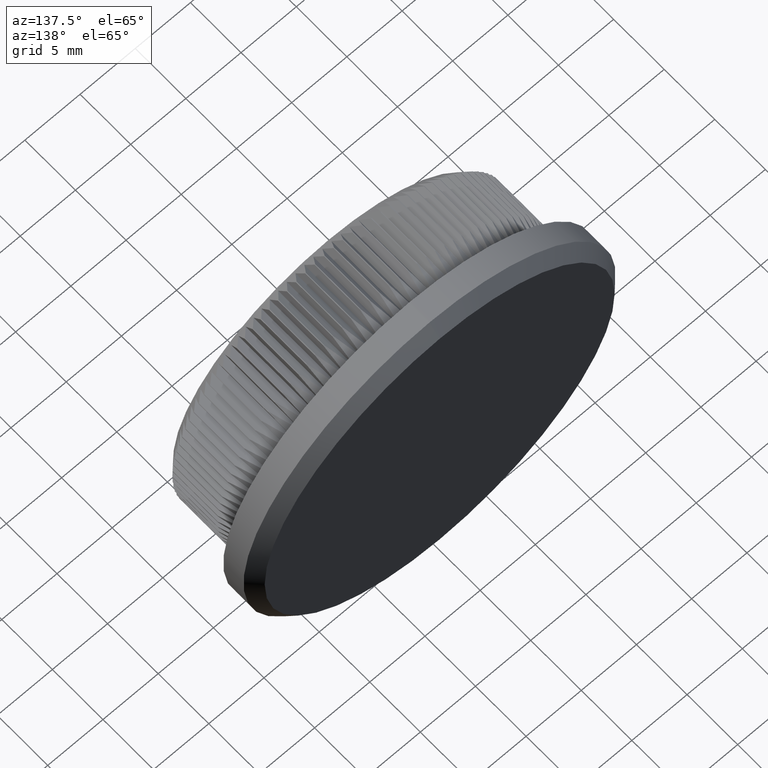
[diagram: clean part render]
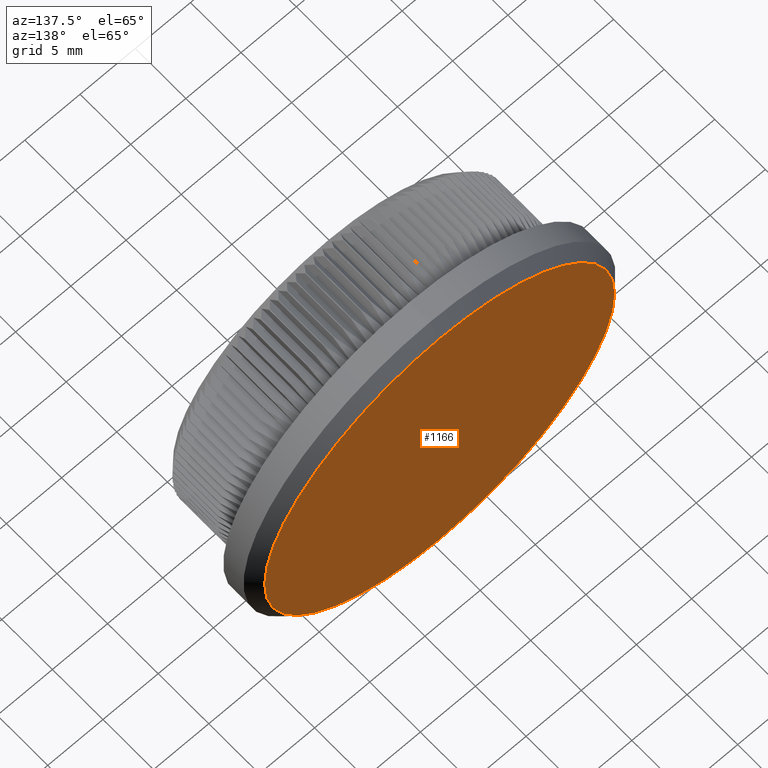
[diagram: same view with one face highlighted and labeled with its STEP entity id]
A machine part, auxiliary view. The second image highlights one B-rep face of the part: STEP entity #1166.
In plain terms, the highlighted planar face has unit normal (0, 1, 0).
Its self-contained STEP definition (entity closure, byte-faithful):
#116 = CIRCLE ( 'NONE', #6219, 15.84999999999998500 ) ;
#1096 = EDGE_CURVE ( 'NONE', #13760, #6550, #116, .T. ) ;
#1166 = ADVANCED_FACE ( 'NONE', ( #4456 ), #4999, .T. ) ;
#2573 = DIRECTION ( 'NONE',  ( 0.0000000000000000000, 1.000000000000000000, 0.0000000000000000000 ) ) ;
#4456 = FACE_OUTER_BOUND ( 'NONE', #11280, .T. ) ;
#4999 = PLANE ( 'NONE',  #13271 ) ;
#6219 = AXIS2_PLACEMENT_3D ( 'NONE', #21355, #22182, #20037 ) ;
#6550 = VERTEX_POINT ( 'NONE', #20574 ) ;
#11280 = EDGE_LOOP ( 'NONE', ( #21702, #15725 ) ) ;
#11325 = DIRECTION ( 'NONE',  ( 0.0000000000000000000, -0.0000000000000000000, 1.000000000000000000 ) ) ;
#12092 = DIRECTION ( 'NONE',  ( 0.0000000000000000000, 0.0000000000000000000, 1.000000000000000000 ) ) ;
#12189 = DIRECTION ( 'NONE',  ( 0.0000000000000000000, 1.000000000000000000, 0.0000000000000000000 ) ) ;
#12984 = CIRCLE ( 'NONE', #13497, 15.84999999999998500 ) ;
#13028 = CARTESIAN_POINT ( 'NONE',  ( 0.0000000000000000000, 11.00000000000000000, -15.84999999999998500 ) ) ;
#13271 = AXIS2_PLACEMENT_3D ( 'NONE', #13642, #2573, #11325 ) ;
#13497 = AXIS2_PLACEMENT_3D ( 'NONE', #24823, #12189, #12092 ) ;
#13642 = CARTESIAN_POINT ( 'NONE',  ( 0.0000000000000000000, 11.00000000000000000, 0.0000000000000000000 ) ) ;
#13760 = VERTEX_POINT ( 'NONE', #13028 ) ;
#15725 = ORIENTED_EDGE ( 'NONE', *, *, #19504, .T. ) ;
#19504 = EDGE_CURVE ( 'NONE', #6550, #13760, #12984, .T. ) ;
#20037 = DIRECTION ( 'NONE',  ( 0.0000000000000000000, 0.0000000000000000000, 1.000000000000000000 ) ) ;
#20574 = CARTESIAN_POINT ( 'NONE',  ( 2.002297516605921500E-015, 11.00000000000000000, 15.84999999999998500 ) ) ;
#21355 = CARTESIAN_POINT ( 'NONE',  ( 0.0000000000000000000, 11.00000000000000000, 0.0000000000000000000 ) ) ;
#21702 = ORIENTED_EDGE ( 'NONE', *, *, #1096, .T. ) ;
#22182 = DIRECTION ( 'NONE',  ( 0.0000000000000000000, 1.000000000000000000, 0.0000000000000000000 ) ) ;
#24823 = CARTESIAN_POINT ( 'NONE',  ( 0.0000000000000000000, 11.00000000000000000, 0.0000000000000000000 ) ) ;